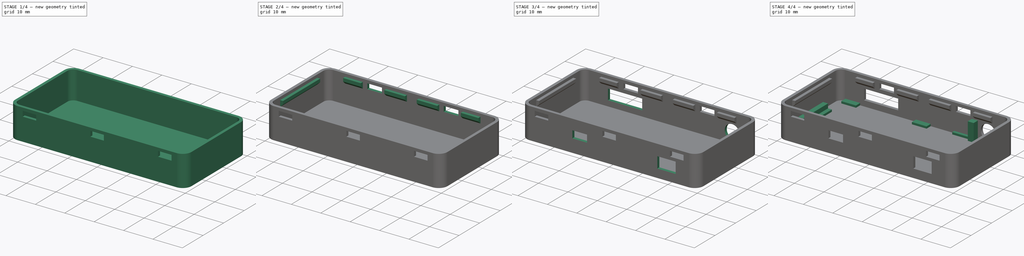
[diagram: build sequence overview — one tinted view per stage of 4, left to right]
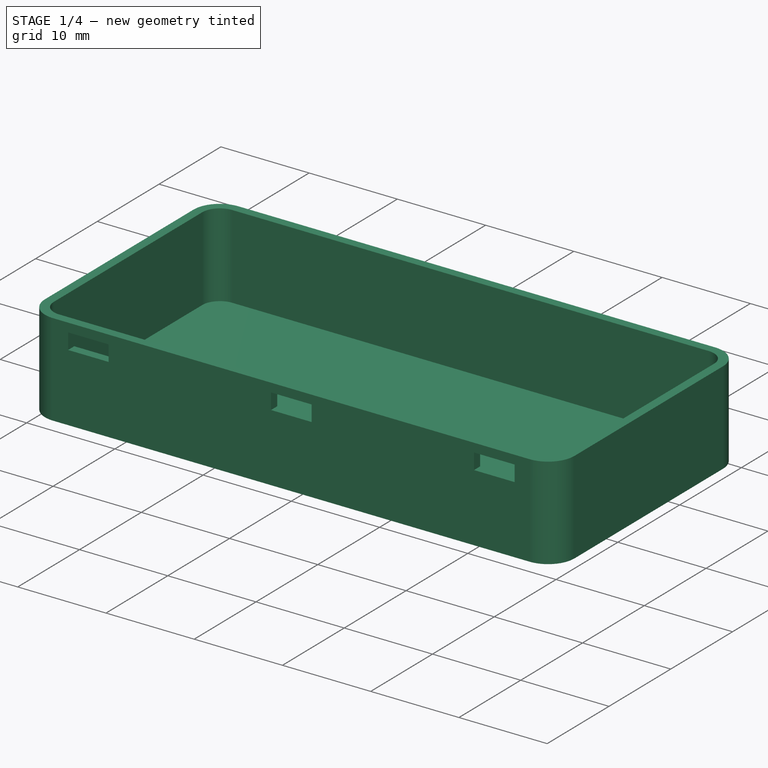
[diagram: stage 1 of 4 — iso view after this stage's code; geometry added in this stage tinted green]
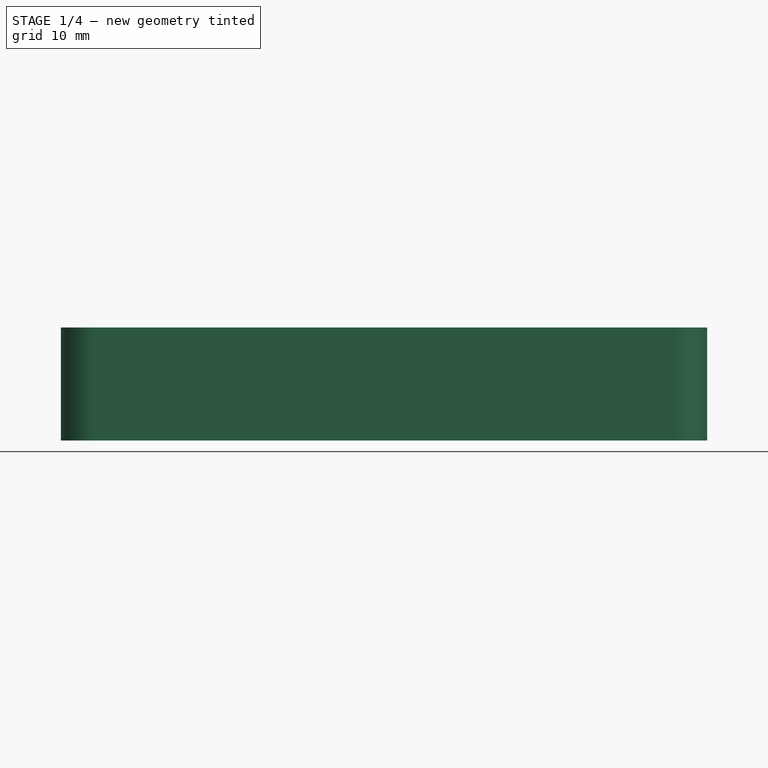
[diagram: stage 1 of 4 — front view after this stage's code; geometry added in this stage tinted green]
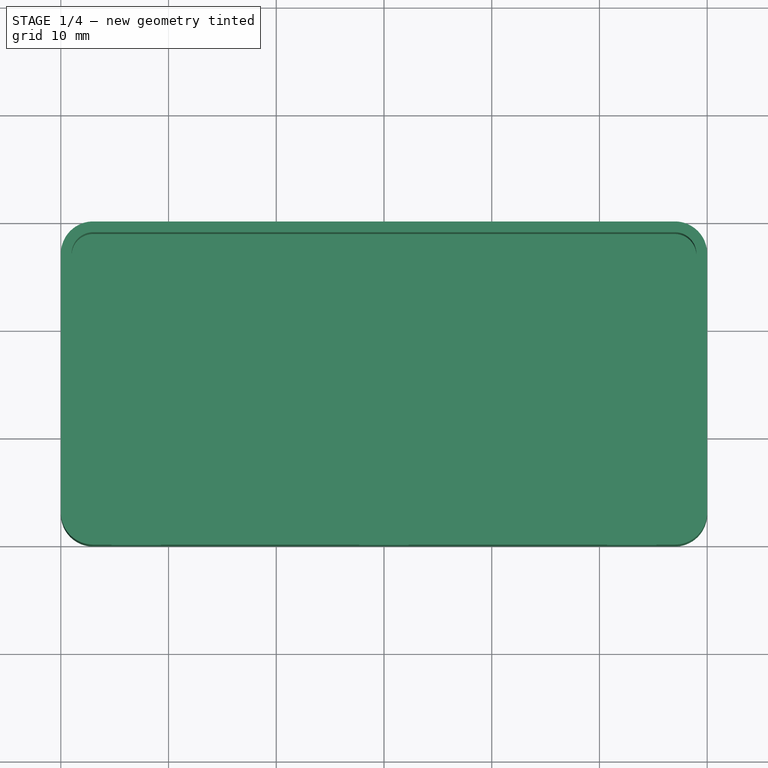
[diagram: stage 1 of 4 — top view after this stage's code; geometry added in this stage tinted green]
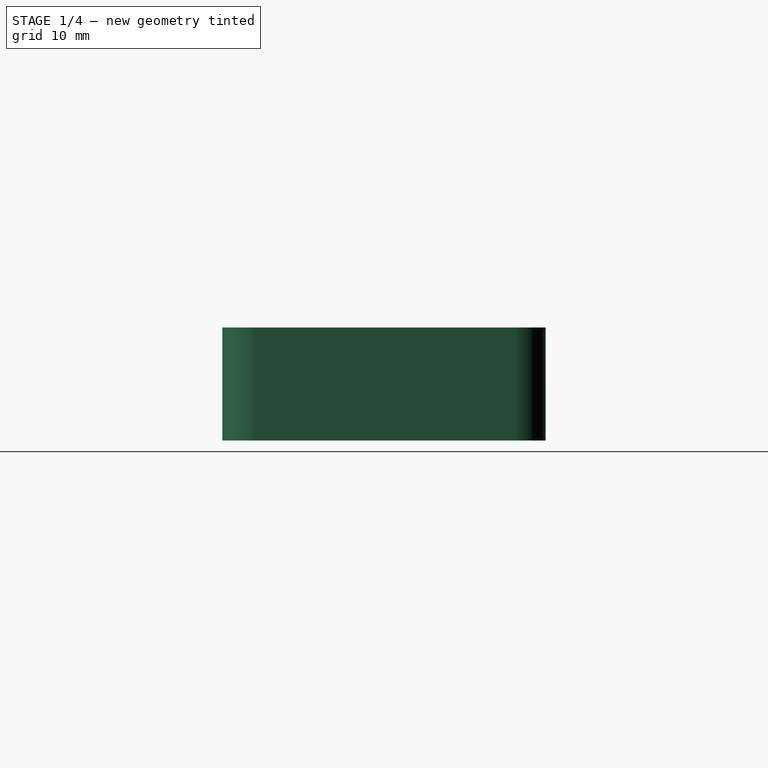
[diagram: stage 1 of 4 — right view after this stage's code; geometry added in this stage tinted green]
FCSTD DOCUMENT  (FreeCAD 0.20R29177 +426 (Git))
Label: box_bottom_proto11
License: All rights reserved
LicenseURL: http://en.wikipedia.org/wiki/All_rights_reserved
objects: Sketcher::SketchObject×10, PartDesign::Pad×5, PartDesign::Pocket×5, PartDesign::Chamfer×1, PartDesign::Body×1
note: 33 computed .brp shape members not serialized (recipe doc carries the construction recipe); baked Part::Feature solids carry a one-line shape summary decoded from their .brp

FEATURE [Sketcher::SketchObject] Sketch
  FullyConstrained = true
  MapMode = 5
  Support = -> [XY_Plane]
  sketch-geometry (20):
    g0: GeomPoint X=0 Y=3 Z=0
    g1: GeomPoint X=3 Y=3 Z=0
    g2: GeomPoint X=3 Y=9e-16 Z=0
    g3: GeomPoint X=1.803e-13 Y=27 Z=0
    g4: GeomPoint X=3 Y=27 Z=0
    g5: GeomPoint X=3 Y=30 Z=0
    g6: ArcOfCircle CenterX=3 CenterY=3 CenterZ=0 NormalX=0 NormalY=0 NormalZ=1 AngleXU=0 Radius=3 StartAngle=3.14159 EndAngle=4.71239
    g7: ArcOfCircle CenterX=3 CenterY=27 CenterZ=0 NormalX=0 NormalY=0 NormalZ=1 AngleXU=0 Radius=3 StartAngle=1.5708 EndAngle=3.14159
    g8: GeomPoint X=57 Y=27 Z=0
    g9: GeomPoint X=57 Y=3 Z=0
    g10: GeomPoint X=57 Y=30 Z=0
    g11: GeomPoint X=60 Y=27 Z=0
    g12: GeomPoint X=60 Y=3 Z=0
    g13: GeomPoint X=57 Y=1.599e-13 Z=0
    g14: ArcOfCircle CenterX=57 CenterY=27 CenterZ=0 NormalX=0 NormalY=0 NormalZ=1 AngleXU=0 Radius=3 StartAngle=0 EndAngle=1.5708
    g15: ArcOfCircle CenterX=57 CenterY=3 CenterZ=0 NormalX=0 NormalY=0 NormalZ=1 AngleXU=0 Radius=3 StartAngle=4.71239 EndAngle=6.28319
    g16: LineSegment StartX=57 StartY=30 StartZ=0 EndX=3 EndY=30 EndZ=0
    g17: LineSegment StartX=1.803e-13 StartY=27 StartZ=0 EndX=0 EndY=3 EndZ=0
    g18: LineSegment StartX=3 StartY=9e-16 StartZ=0 EndX=57 EndY=1.599e-13 EndZ=0
    g19: LineSegment StartX=60 StartY=3 StartZ=0 EndX=60 EndY=27 EndZ=0
  constraints (40):
    c: PointOnObject(g0,g-2)
    c: PointOnObject(g2,g-1)
    c: PointOnObject(g3,g-2)
    c: DistanceY(g-1,g1) = 3
    c: DistanceY(g-1,g0) = 3
    c: DistanceX(g-1,g2) = 3
    c: Coincident(g6,g1)
    c: Coincident(g6,g0)
    c: Coincident(g6,g2)
    c: DistanceY(g-1,g4) = 27
    c: DistanceY(g-1,g3) = 27
    c: DistanceY(g-1,g5) = 30
    c: DistanceX(g-1,g5) = 3
    c: Coincident(g7,g4)
    c: Coincident(g7,g5)
    c: Coincident(g7,g3)
    c: PointOnObject(g13,g-1)
    c: DistanceX(g-1,g13) = 57
    c: DistanceX(g-1,g9) = 57
    c: DistanceY(g-1,g9) = 3
    c: DistanceY(g-1,g12) = 3
    c: DistanceX(g-1,g11) = 60
    c: DistanceY(g-1,g11) = 27
    c: DistanceY(g-1,g8) = 27
    c: DistanceX(g-1,g8) = 57
    c: DistanceX(g-1,g10) = 57
    c: Coincident(g14,g8)
    c: Coincident(g14,g11)
    c: Coincident(g14,g10)
    c: Coincident(g15,g9)
    c: Coincident(g15,g13)
    c: Coincident(g15,g12)
    c: Coincident(g16,g14)
    c: Coincident(g16,g7)
    c: Coincident(g17,g7)
    c: Coincident(g17,g6)
    c: Coincident(g18,g6)
    c: Coincident(g18,g15)
    c: Coincident(g19,g15)
    c: Coincident(g19,g14)
FEATURE [PartDesign::Pad] Pad
  Direction = (0,0,1)
  Length = 10.5
  Length2 = 10
  Profile = -> Sketch
  ReferenceAxis = -> Sketch [N_Axis]
  Type = 0
FEATURE [Sketcher::SketchObject] Sketch001
  FullyConstrained = true
  MapMode = 5
  Placement = pos=(0,0,10.5) rot=(0,0,1;0rad)
  Support = -> [Pad]
  sketch-geometry (20):
    g0: GeomPoint X=3 Y=3 Z=0
    g1: GeomPoint X=3 Y=27 Z=0
    g2: GeomPoint X=57 Y=27 Z=0
    g3: GeomPoint X=57 Y=3 Z=0
    g4: GeomPoint X=1 Y=27 Z=0
    g5: GeomPoint X=3 Y=29 Z=0
    g6: GeomPoint X=59 Y=27 Z=0
    g7: GeomPoint X=57 Y=29 Z=0
    g8: GeomPoint X=59 Y=3 Z=0
    g9: GeomPoint X=57 Y=1 Z=0
    g10: GeomPoint X=3 Y=1 Z=0
    g11: GeomPoint X=1 Y=3 Z=0
    g12: ArcOfCircle CenterX=3 CenterY=27 CenterZ=0 NormalX=0 NormalY=0 NormalZ=1 AngleXU=0 Radius=2 StartAngle=1.5708 EndAngle=3.14159
    g13: ArcOfCircle CenterX=3 CenterY=3 CenterZ=0 NormalX=0 NormalY=0 NormalZ=1 AngleXU=0 Radius=2 StartAngle=3.14159 EndAngle=4.71239
    g14: ArcOfCircle CenterX=57 CenterY=27 CenterZ=0 NormalX=0 NormalY=0 NormalZ=1 AngleXU=0 Radius=2 StartAngle=0 EndAngle=1.5708
    g15: ArcOfCircle CenterX=57 CenterY=3 CenterZ=0 NormalX=0 NormalY=0 NormalZ=1 AngleXU=0 Radius=2 StartAngle=4.71239 EndAngle=6.28319
    g16: LineSegment StartX=3 StartY=29 StartZ=0 EndX=57 EndY=29 EndZ=0
    g17: LineSegment StartX=59 StartY=27 StartZ=0 EndX=59 EndY=3 EndZ=0
    g18: LineSegment StartX=57 StartY=1 StartZ=0 EndX=3 EndY=1 EndZ=0
    g19: LineSegment StartX=1 StartY=3 StartZ=0 EndX=1 EndY=27 EndZ=0
  constraints (41):
    c: DistanceY(g-1,g0) = 3
    c: DistanceX(g-1,g0) = 3
    c: DistanceY(g-1,g1) = 27
    c: DistanceX(g-1,g1) = 3
    c: DistanceY(g-1,g3) = 3
    c: DistanceX(g-1,g3) = 57
    c: DistanceX(g-1,g2) = 57
    c: DistanceY(g-1,g2) = 27
    c: DistanceX(g-1,g10) = 3
    c: DistanceY(g-1,g10) = 1
    c: DistanceY(g-1,g11) = 3
    c: DistanceX(g-1,g5) = 3
    c: DistanceY(g-1,g5) = 29
    c: DistanceY(g-1,g9) = 1
    c: DistanceX(g-1,g9) = 57
    c: DistanceY(g-1,g8) = 3
    c: DistanceX(g-1,g6) = 59
    c: DistanceY(g-1,g6) = 27
    c: DistanceY(g-1,g7) = 29
    c: DistanceX(g-1,g7) = 57
    c: Coincident(g12,g1)
    c: Coincident(g12,g5)
    c: Coincident(g12,g4)
    c: Coincident(g13,g0)
    c: Coincident(g13,g11)
    c: Coincident(g13,g10)
    c: Coincident(g14,g2)
    c: Coincident(g14,g6)
    c: Coincident(g15,g3)
    c: Coincident(g15,g9)
    c: Coincident(g15,g8)
    c: Coincident(g16,g12)
    c: Coincident(g16,g14)
    c: Horizontal(g16)
    c: Coincident(g17,g14)
    c: Coincident(g17,g15)
    c: Coincident(g18,g15)
    c: Coincident(g18,g13)
    c: Coincident(g19,g13)
    c: Coincident(g19,g12)
    c: DistanceY(g-1,g12) = 27
FEATURE [PartDesign::Pocket] Pocket
  BaseFeature = -> Pad
  Direction = (0,0,-1)
  Length = 9.5
  Length2 = 5
  Profile = -> Sketch001
  ReferenceAxis = -> Sketch001 [N_Axis]
  Type = 0
FEATURE [Sketcher::SketchObject] Sketch002
  FullyConstrained = true
  MapMode = 5
  Placement = pos=(0,0,0) rot=(1,0,0;1.5708rad)
  Support = -> [XZ_Plane]
  sketch-geometry (12):
    g0: LineSegment StartX=4.7 StartY=9.5 StartZ=0 EndX=9.3 EndY=9.5 EndZ=0
    g1: LineSegment StartX=9.3 StartY=9.5 StartZ=0 EndX=9.3 EndY=7.7 EndZ=0
    g2: LineSegment StartX=9.3 StartY=7.7 StartZ=0 EndX=4.7 EndY=7.7 EndZ=0
    g3: LineSegment StartX=4.7 StartY=7.7 StartZ=0 EndX=4.7 EndY=9.5 EndZ=0
    g4: LineSegment StartX=27.7 StartY=9.5 StartZ=0 EndX=32.3 EndY=9.5 EndZ=0
    g5: LineSegment StartX=32.3 StartY=9.5 StartZ=0 EndX=32.3 EndY=7.7 EndZ=0
    g6: LineSegment StartX=32.3 StartY=7.7 StartZ=0 EndX=27.7 EndY=7.7 EndZ=0
    g7: LineSegment StartX=27.7 StartY=7.7 StartZ=0 EndX=27.7 EndY=9.5 EndZ=0
    g8: LineSegment StartX=50.7 StartY=9.5 StartZ=0 EndX=55.3 EndY=9.5 EndZ=0
    g9: LineSegment StartX=55.3 StartY=9.5 StartZ=0 EndX=55.3 EndY=7.7 EndZ=0
    g10: LineSegment StartX=55.3 StartY=7.7 StartZ=0 EndX=50.7 EndY=7.7 EndZ=0
    g11: LineSegment StartX=50.7 StartY=7.7 StartZ=0 EndX=50.7 EndY=9.5 EndZ=0
  constraints (36):
    c: Coincident(g0,g1)
    c: Coincident(g1,g2)
    c: Coincident(g2,g3)
    c: Coincident(g3,g0)
    c: Horizontal(g0)
    c: Horizontal(g2)
    c: Vertical(g1)
    c: Vertical(g3)
    c: Coincident(g4,g5)
    c: Coincident(g5,g6)
    c: Coincident(g6,g7)
    c: Coincident(g7,g4)
    c: Horizontal(g4)
    c: Horizontal(g6)
    c: Vertical(g5)
    c: Vertical(g7)
    c: Coincident(g8,g9)
    c: Coincident(g9,g10)
    c: Coincident(g10,g11)
    c: Coincident(g11,g8)
    c: Horizontal(g8)
    c: Horizontal(g10)
    c: Vertical(g9)
    c: Vertical(g11)
    c: DistanceX(g-1,g6) = 27.7
    c: DistanceX(g-1,g4) = 32.3
    c: DistanceY(g-1,g6) = 7.7
    c: DistanceY(g-1,g4) = 9.5
    c: DistanceX(g-1,g2) = 4.7
    c: DistanceX(g-1,g1) = 9.3
    c: DistanceY(g-1,g1) = 7.7
    c: DistanceY(g-1,g0) = 9.5
    c: DistanceX(g-1,g9) = 55.3
    c: DistanceX(g-1,g10) = 50.7
    c: DistanceY(g-1,g10) = 7.7
    c: DistanceY(g-1,g8) = 9.5
FEATURE [PartDesign::Pocket] Pocket001
  BaseFeature = -> Pocket
  Direction = (0,1,2e-16)
  Length = 5
  Length2 = 5
  Profile = -> Sketch002
  ReferenceAxis = -> Sketch002 [N_Axis]
  Type = 2
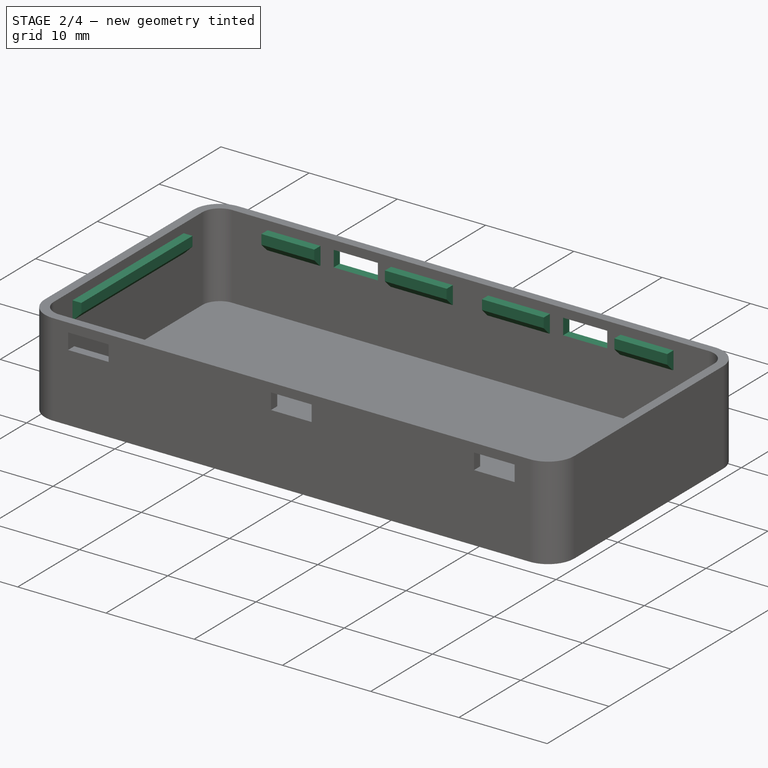
[diagram: stage 2 of 4 — iso view after this stage's code; geometry added in this stage tinted green]
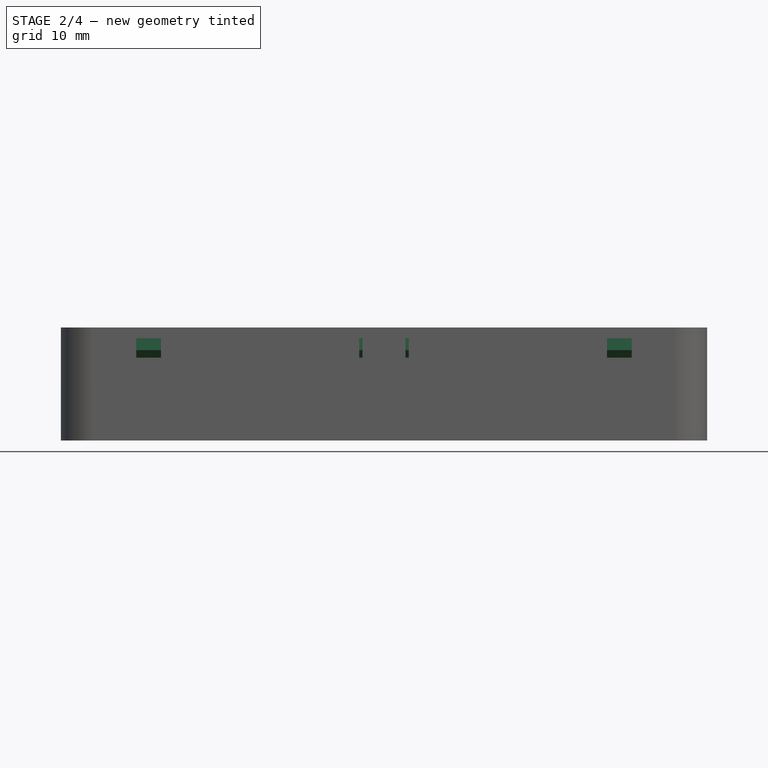
[diagram: stage 2 of 4 — front view after this stage's code; geometry added in this stage tinted green]
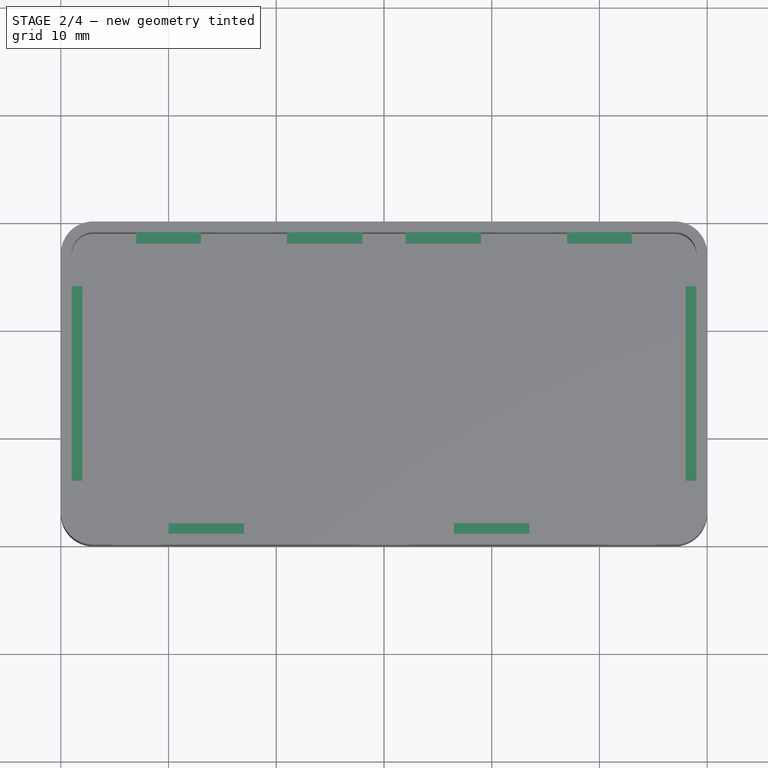
[diagram: stage 2 of 4 — top view after this stage's code; geometry added in this stage tinted green]
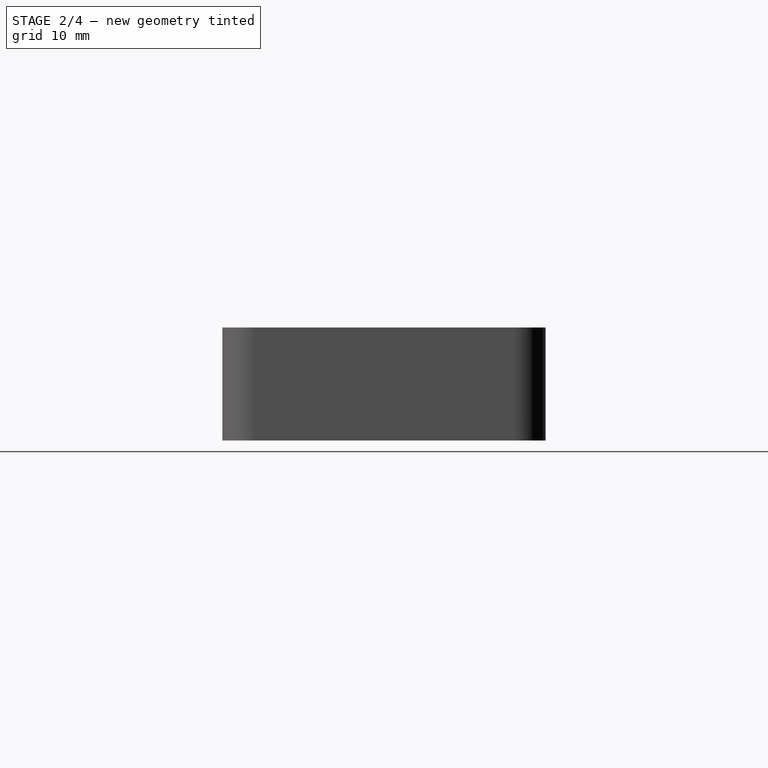
[diagram: stage 2 of 4 — right view after this stage's code; geometry added in this stage tinted green]
FEATURE [Sketcher::SketchObject] Sketch003
  FullyConstrained = true
  MapMode = 5
  Placement = pos=(0,29,0) rot=(1,0,0;1.5708rad)
  Support = -> [Pocket001]
  sketch-geometry (8):
    g0: LineSegment StartX=14.5 StartY=9.5 StartZ=0 EndX=19.5 EndY=9.5 EndZ=0
    g1: LineSegment StartX=19.5 StartY=9.5 StartZ=0 EndX=19.5 EndY=7.7 EndZ=0
    g2: LineSegment StartX=19.5 StartY=7.7 StartZ=0 EndX=14.5 EndY=7.7 EndZ=0
    g3: LineSegment StartX=14.5 StartY=7.7 StartZ=0 EndX=14.5 EndY=9.5 EndZ=0
    g4: LineSegment StartX=40.5 StartY=9.5 StartZ=0 EndX=45.5 EndY=9.5 EndZ=0
    g5: LineSegment StartX=45.5 StartY=9.5 StartZ=0 EndX=45.5 EndY=7.7 EndZ=0
    g6: LineSegment StartX=45.5 StartY=7.7 StartZ=0 EndX=40.5 EndY=7.7 EndZ=0
    g7: LineSegment StartX=40.5 StartY=7.7 StartZ=0 EndX=40.5 EndY=9.5 EndZ=0
  constraints (24):
    c: Coincident(g0,g1)
    c: Coincident(g1,g2)
    c: Coincident(g2,g3)
    c: Coincident(g3,g0)
    c: Horizontal(g0)
    c: Horizontal(g2)
    c: Vertical(g1)
    c: Vertical(g3)
    c: Coincident(g4,g5)
    c: Coincident(g5,g6)
    c: Coincident(g6,g7)
    c: Coincident(g7,g4)
    c: Horizontal(g4)
    c: Horizontal(g6)
    c: Vertical(g5)
    c: Vertical(g7)
    c: DistanceX(g-1,g1) = 19.5
    c: DistanceX(g-1,g2) = 14.5
    c: DistanceX(g-1,g5) = 45.5
    c: DistanceX(g-1,g6) = 40.5
    c: DistanceY(g-1,g2) = 7.7
    c: DistanceY(g-1,g0) = 9.5
    c: DistanceY(g-1,g6) = 7.7
    c: DistanceY(g-1,g4) = 9.5
FEATURE [PartDesign::Pocket] Pocket002
  BaseFeature = -> Pocket001
  Direction = (0,1,-2e-16)
  Length = 5
  Length2 = 5
  Profile = -> Sketch003
  ReferenceAxis = -> Sketch003 [N_Axis]
  Type = 2
FEATURE [Sketcher::SketchObject] Sketch004
  AttachmentOffset = pos=(0,0,9.5) rot=(0,0,1;0rad)
  FullyConstrained = true
  MapMode = 5
  Placement = pos=(0,0,9.5) rot=(0,0,1;0rad)
  Support = -> [XY_Plane]
  sketch-geometry (32):
    g0: LineSegment StartX=1 StartY=24 StartZ=0 EndX=2 EndY=24 EndZ=0
    g1: LineSegment StartX=2 StartY=24 StartZ=0 EndX=2 EndY=6 EndZ=0
    g2: LineSegment StartX=2 StartY=6 StartZ=0 EndX=1 EndY=6 EndZ=0
    g3: LineSegment StartX=1 StartY=6 StartZ=0 EndX=1 EndY=24 EndZ=0
    g4: LineSegment StartX=10 StartY=2 StartZ=0 EndX=17 EndY=2 EndZ=0
    g5: LineSegment StartX=17 StartY=2 StartZ=0 EndX=17 EndY=1 EndZ=0
    g6: LineSegment StartX=17 StartY=1 StartZ=0 EndX=10 EndY=1 EndZ=0
    g7: LineSegment StartX=10 StartY=1 StartZ=0 EndX=10 EndY=2 EndZ=0
    g8: LineSegment StartX=36.5 StartY=2 StartZ=0 EndX=43.5 EndY=2 EndZ=0
    g9: LineSegment StartX=43.5 StartY=2 StartZ=0 EndX=43.5 EndY=1 EndZ=0
    g10: LineSegment StartX=43.5 StartY=1 StartZ=0 EndX=36.5 EndY=1 EndZ=0
    g11: LineSegment StartX=36.5 StartY=1 StartZ=0 EndX=36.5 EndY=2 EndZ=0
    g12: LineSegment StartX=21 StartY=29 StartZ=0 EndX=28 EndY=29 EndZ=0
    g13: LineSegment StartX=28 StartY=29 StartZ=0 EndX=28 EndY=28 EndZ=0
    g14: LineSegment StartX=28 StartY=28 StartZ=0 EndX=21 EndY=28 EndZ=0
    g15: LineSegment StartX=21 StartY=28 StartZ=0 EndX=21 EndY=29 EndZ=0
    g16: LineSegment StartX=47 StartY=29 StartZ=0 EndX=53 EndY=29 EndZ=0
    g17: LineSegment StartX=53 StartY=29 StartZ=0 EndX=53 EndY=28 EndZ=0
    g18: LineSegment StartX=53 StartY=28 StartZ=0 EndX=47 EndY=28 EndZ=0
    g19: LineSegment StartX=47 StartY=28 StartZ=0 EndX=47 EndY=29 EndZ=0
    g20: LineSegment StartX=58 StartY=24 StartZ=0 EndX=59 EndY=24 EndZ=0
    g21: LineSegment StartX=59 StartY=24 StartZ=0 EndX=59 EndY=6 EndZ=0
    g22: LineSegment StartX=59 StartY=6 StartZ=0 EndX=58 EndY=6 EndZ=0
    g23: LineSegment StartX=58 StartY=6 StartZ=0 EndX=58 EndY=24 EndZ=0
    g24: LineSegment StartX=7 StartY=29 StartZ=0 EndX=13 EndY=29 EndZ=0
    g25: LineSegment StartX=13 StartY=29 StartZ=0 EndX=13 EndY=28 EndZ=0
    g26: LineSegment StartX=13 StartY=28 StartZ=0 EndX=7 EndY=28 EndZ=0
    g27: LineSegment StartX=7 StartY=28 StartZ=0 EndX=7 EndY=29 EndZ=0
    g28: LineSegment StartX=32 StartY=29 StartZ=0 EndX=39 EndY=29 EndZ=0
    g29: LineSegment StartX=39 StartY=29 StartZ=0 EndX=39 EndY=28 EndZ=0
    g30: LineSegment StartX=39 StartY=28 StartZ=0 EndX=32 EndY=28 EndZ=0
    g31: LineSegment StartX=32 StartY=28 StartZ=0 EndX=32 EndY=29 EndZ=0
  constraints (96):
    c: Coincident(g0,g1)
    c: Coincident(g1,g2)
    c: Coincident(g2,g3)
    c: Coincident(g3,g0)
    c: Horizontal(g0)
    c: Horizontal(g2)
    c: Vertical(g1)
    c: Vertical(g3)
    c: Coincident(g4,g5)
    c: Coincident(g5,g6)
    c: Coincident(g6,g7)
    c: Coincident(g7,g4)
    c: Horizontal(g4)
    c: Horizontal(g6)
    c: Vertical(g5)
    c: Vertical(g7)
    c: Coincident(g8,g9)
    c: Coincident(g9,g10)
    c: Coincident(g10,g11)
    c: Coincident(g11,g8)
    c: Horizontal(g8)
    c: Horizontal(g10)
    c: Vertical(g9)
    c: Vertical(g11)
    c: Coincident(g12,g13)
    c: Coincident(g13,g14)
    c: Coincident(g14,g15)
    c: Coincident(g15,g12)
    c: Horizontal(g12)
    c: Horizontal(g14)
    c: Vertical(g13)
    c: Vertical(g15)
    c: Coincident(g16,g17)
    c: Coincident(g17,g18)
    c: Coincident(g18,g19)
    c: Coincident(g19,g16)
    c: Horizontal(g16)
    c: Horizontal(g18)
    c: Vertical(g17)
    c: Vertical(g19)
    c: Coincident(g20,g21)
    c: Coincident(g21,g22)
    c: Coincident(g22,g23)
    c: Coincident(g23,g20)
    c: Horizontal(g20)
    c: Horizontal(g22)
    c: Vertical(g21)
    c: Vertical(g23)
    c: DistanceY(g-1,g0) = 24
    c: DistanceY(g-1,g2) = 6
    c: DistanceX(g-1,g0) = 1
    c: DistanceX(g-1,g0) = 2
    c: DistanceY(g-1,g20) = 24
    c: DistanceY(g-1,g22) = 6
    c: DistanceX(g-1,g20) = 59
    c: DistanceX(g-1,g22) = 58
    c: DistanceY(g-1,g6) = 1
    c: DistanceY(g-1,g4) = 2
    c: DistanceY(g-1,g10) = 1
    c: DistanceY(g-1,g8) = 2
    c: DistanceY(g-1,g14) = 28
    c: DistanceY(g-1,g12) = 29
    c: DistanceY(g-1,g16) = 29
    c: DistanceY(g-1,g18) = 28
    c: Coincident(g24,g25)
    c: Coincident(g25,g26)
    c: Coincident(g26,g27)
    c: Coincident(g27,g24)
    c: Horizontal(g24)
    c: Horizontal(g26)
    c: Vertical(g25)
    c: Vertical(g27)
    c: DistanceY(g-1,g26) = 28
    c: DistanceY(g-1,g24) = 29
    c: DistanceX(g-1,g26) = 7
    c: DistanceX(g-1,g25) = 13
    c: DistanceX(g-1,g14) = 21
    c: DistanceX(g-1,g13) = 28
    c: DistanceX(g-1,g18) = 47
    c: DistanceX(g-1,g17) = 53
    c: DistanceX(g-1,g6) = 10
    c: DistanceX(g-1,g5) = 17
    c: DistanceX(g-1,g10) = 36.5
    c: DistanceX(g-1,g9) = 43.5
    c: Coincident(g28,g29)
    c: Coincident(g29,g30)
    c: Coincident(g30,g31)
    c: Coincident(g31,g28)
    c: Horizontal(g28)
    c: Horizontal(g30)
    c: Vertical(g29)
    c: Vertical(g31)
    c: DistanceY(g-1,g28) = 29
    c: DistanceY(g-1,g30) = 28
    c: DistanceX(g-1,g30) = 32
    c: DistanceX(g-1,g29) = 39
FEATURE [PartDesign::Pad] Pad001
  BaseFeature = -> Pocket002
  Direction = (0,0,1)
  Length = 2
  Length2 = 10
  Profile = -> Sketch004
  ReferenceAxis = -> Sketch004 [N_Axis]
  Reversed = true
  Type = 0
FEATURE [PartDesign::Chamfer] Chamfer
  Angle = 45
  Base = -> Pad001 [Edge184,Edge192,Edge201,Edge179,Edge145,Edge153,Edge161,Edge169]
  BaseFeature = -> Pad001
  ChamferType = 0
  FlipDirection = false
  Size = 0.9
  Size2 = 1
  SupportTransform = false
  UseAllEdges = false
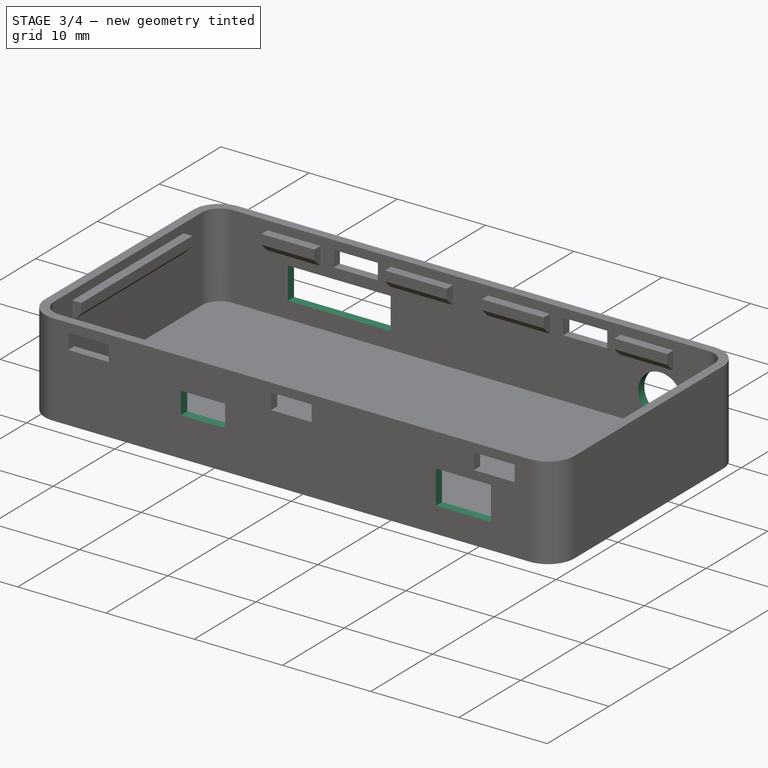
[diagram: stage 3 of 4 — iso view after this stage's code; geometry added in this stage tinted green]
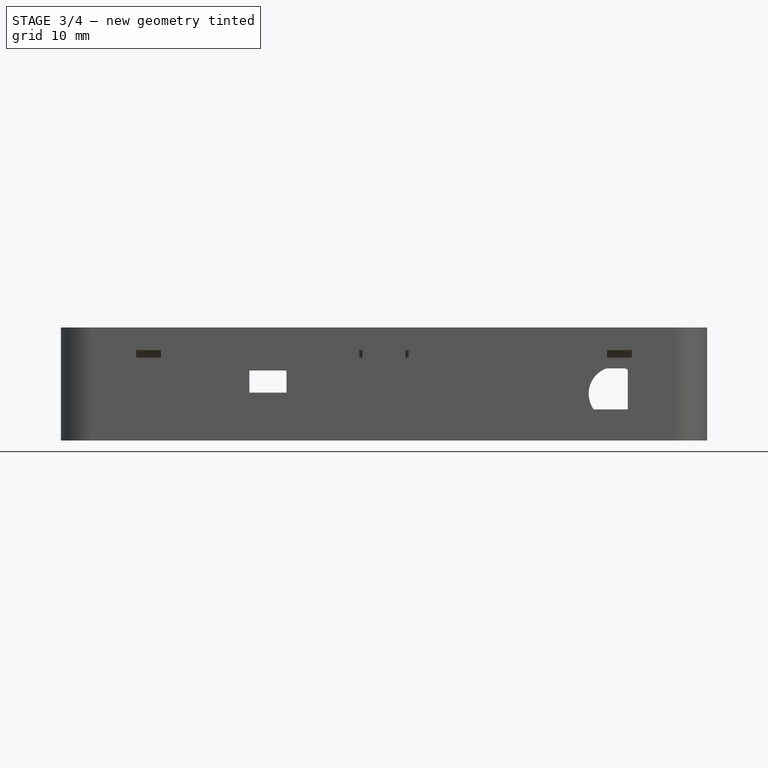
[diagram: stage 3 of 4 — front view after this stage's code; geometry added in this stage tinted green]
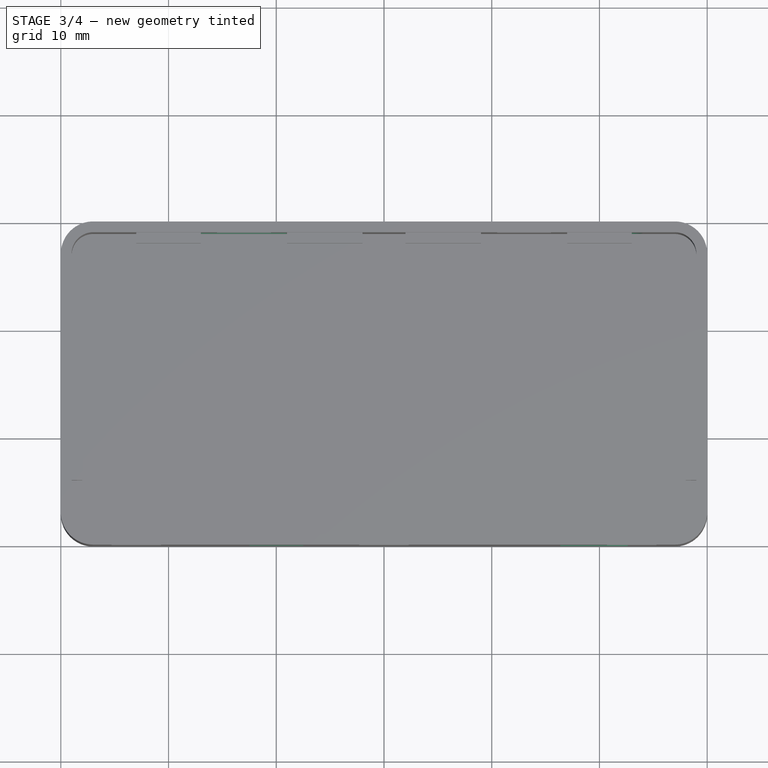
[diagram: stage 3 of 4 — top view after this stage's code; geometry added in this stage tinted green]
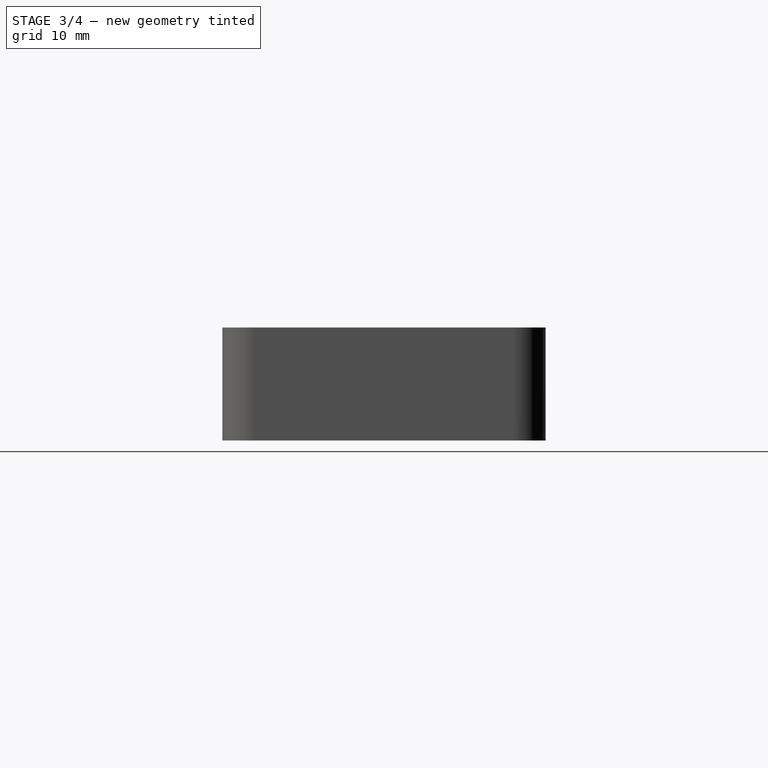
[diagram: stage 3 of 4 — right view after this stage's code; geometry added in this stage tinted green]
FEATURE [Sketcher::SketchObject] Sketch005
  AttachmentOffset = pos=(0,0,-28) rot=(0,1,0;0rad)
  FullyConstrained = true
  MapMode = 5
  Placement = pos=(0,28,6.2e-15) rot=(1,0,0;1.5708rad)
  Support = -> [XZ_Plane]
  sketch-geometry (5):
    g0: LineSegment StartX=20.95 StartY=6.5 StartZ=0 EndX=20.95 EndY=2.9 EndZ=0
    g1: LineSegment StartX=20.95 StartY=2.9 StartZ=0 EndX=9.3 EndY=2.9 EndZ=0
    g2: Circle CenterX=51.5 CenterY=4.35 CenterZ=0 NormalX=0 NormalY=0 NormalZ=1 AngleXU=0 Radius=2.5
    g3: LineSegment StartX=20.95 StartY=6.5 StartZ=0 EndX=9.3 EndY=6.5 EndZ=0
    g4: LineSegment StartX=9.3 StartY=2.9 StartZ=0 EndX=9.3 EndY=6.5 EndZ=0
  constraints (15):
    c: Coincident(g0,g1)
    c: Horizontal(g1)
    c: Vertical(g0)
    c: DistanceY(g-1,g1) = 2.9
    c: Diameter(g2) = 5
    c: DistanceY(g-1,g2) = 4.35
    c: DistanceX(g-1,g2) = 51.5
    c: DistanceX(g-1,g0) = 20.95
    c: DistanceX(g-1,g1) = 9.3
    c: DistanceY(g-1,g0) = 6.5
    c: Coincident(g3,g0)
    c: Horizontal(g3)
    c: Coincident(g4,g1)
    c: Vertical(g4)
    c: Coincident(g3,g4)
FEATURE [PartDesign::Pocket] Pocket003
  BaseFeature = -> Chamfer
  Direction = (0,1,2e-16)
  Length = 5
  Length2 = 5
  Profile = -> Sketch005
  ReferenceAxis = -> Sketch005 [N_Axis]
  Type = 1
FEATURE [Sketcher::SketchObject] Sketch006
  FullyConstrained = true
  MapMode = 5
  Placement = pos=(0,0,0) rot=(1,0,0;1.5708rad)
  Support = -> [XZ_Plane]
  sketch-geometry (8):
    g0: LineSegment StartX=46.375 StartY=6.7 StartZ=0 EndX=52.625 EndY=6.7 EndZ=0
    g1: LineSegment StartX=52.625 StartY=6.7 StartZ=0 EndX=52.625 EndY=2.9 EndZ=0
    g2: LineSegment StartX=52.625 StartY=2.9 StartZ=0 EndX=46.375 EndY=2.9 EndZ=0
    g3: LineSegment StartX=46.375 StartY=2.9 StartZ=0 EndX=46.375 EndY=6.7 EndZ=0
    g4: LineSegment StartX=17.5 StartY=6.95 StartZ=0 EndX=22.5 EndY=6.95 EndZ=0
    g5: LineSegment StartX=22.5 StartY=6.95 StartZ=0 EndX=22.5 EndY=4.45 EndZ=0
    g6: LineSegment StartX=22.5 StartY=4.45 StartZ=0 EndX=17.5 EndY=4.45 EndZ=0
    g7: LineSegment StartX=17.5 StartY=4.45 StartZ=0 EndX=17.5 EndY=6.95 EndZ=0
  constraints (24):
    c: Coincident(g0,g1)
    c: Coincident(g1,g2)
    c: Coincident(g2,g3)
    c: Coincident(g3,g0)
    c: Horizontal(g0)
    c: Horizontal(g2)
    c: Vertical(g1)
    c: Vertical(g3)
    c: DistanceY(g-1,g1) = 2.9
    c: DistanceY(g-1,g0) = 6.7
    c: DistanceX(g-1,g2) = 46.375
    c: DistanceX(g-1,g1) = 52.625
    c: Coincident(g4,g5)
    c: Coincident(g5,g6)
    c: Coincident(g6,g7)
    c: Coincident(g7,g4)
    c: Horizontal(g4)
    c: Horizontal(g6)
    c: Vertical(g5)
    c: Vertical(g7)
    c: DistanceY(g-1,g6) = 4.45
    c: DistanceY(g-1,g4) = 6.95
    c: DistanceX(g-1,g4) = 17.5
    c: DistanceX(g-1,g4) = 22.5
FEATURE [PartDesign::Pocket] Pocket004
  BaseFeature = -> Pocket003
  Direction = (0,1,2e-16)
  Length = 5
  Length2 = 5
  Profile = -> Sketch006
  ReferenceAxis = -> Sketch006 [N_Axis]
  Type = 2
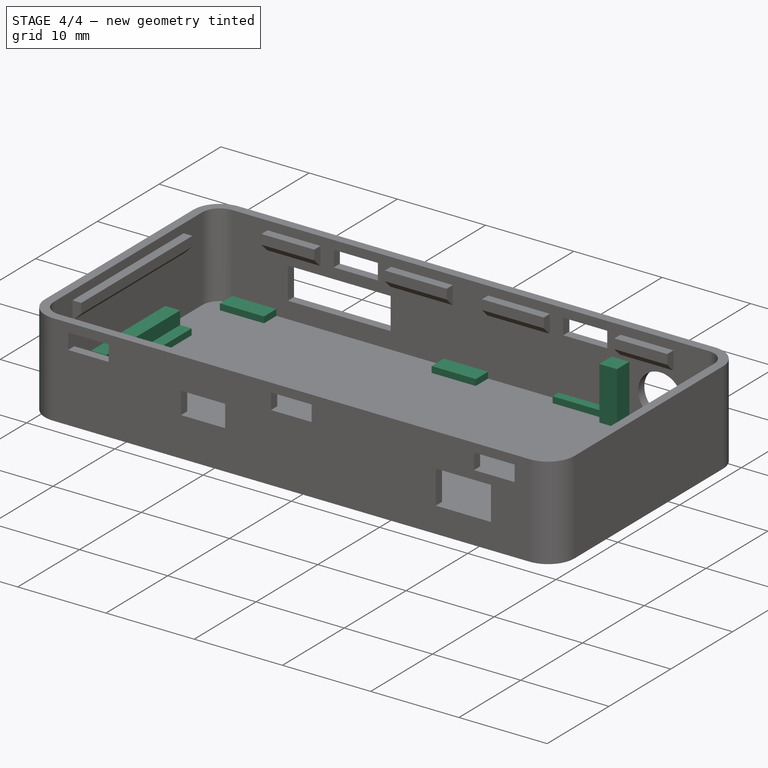
[diagram: stage 4 of 4 — iso view after this stage's code; geometry added in this stage tinted green]
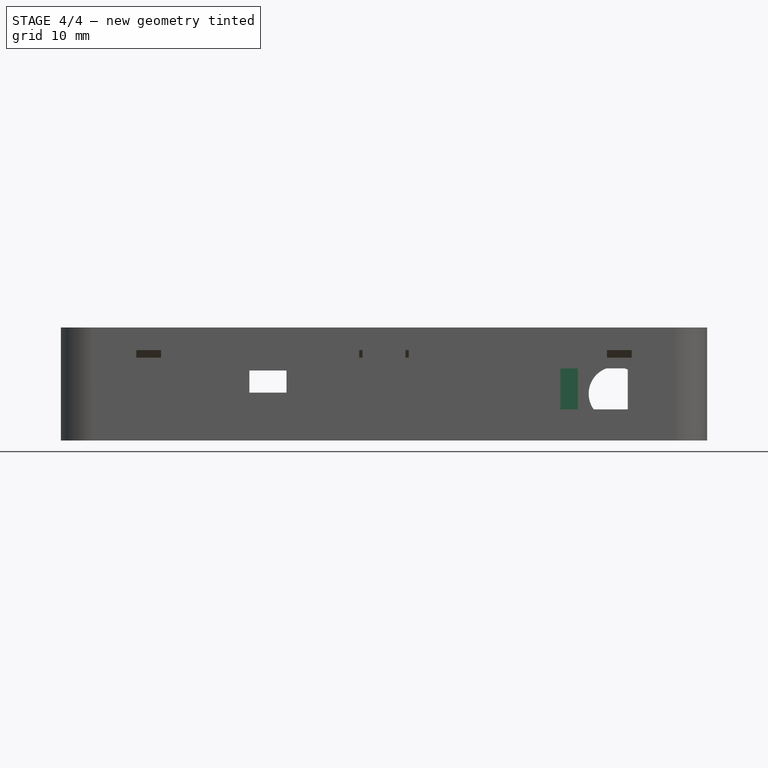
[diagram: stage 4 of 4 — front view after this stage's code; geometry added in this stage tinted green]
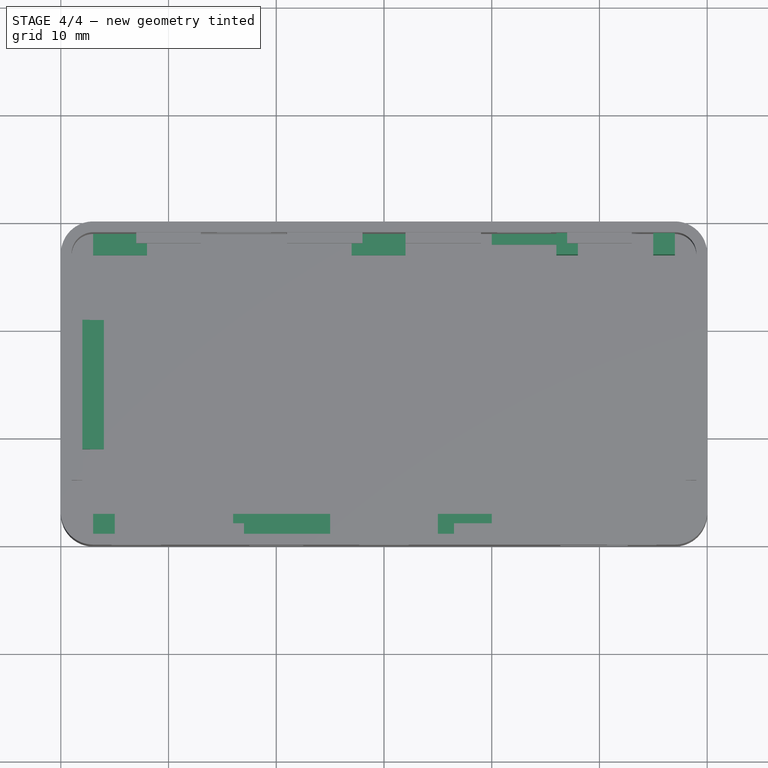
[diagram: stage 4 of 4 — top view after this stage's code; geometry added in this stage tinted green]
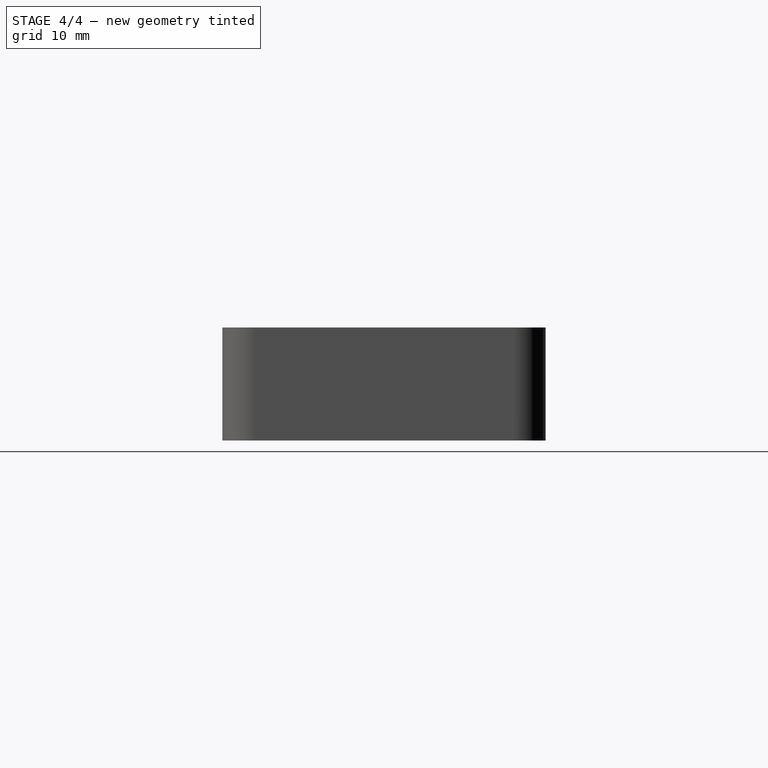
[diagram: stage 4 of 4 — right view after this stage's code; geometry added in this stage tinted green]
FEATURE [Sketcher::SketchObject] Sketch007
  FullyConstrained = true
  MapMode = 5
  Placement = pos=(0,0,1) rot=(0,0,1;0rad)
  Support = -> [Pocket004]
  sketch-geometry (32):
    g0: LineSegment StartX=4 StartY=21 StartZ=0 EndX=1 EndY=21 EndZ=0
    g1: LineSegment StartX=1 StartY=21 StartZ=0 EndX=1 EndY=9 EndZ=0
    g2: LineSegment StartX=1 StartY=9 StartZ=0 EndX=4 EndY=9 EndZ=0
    g3: LineSegment StartX=4 StartY=9 StartZ=0 EndX=4 EndY=21 EndZ=0
    g4: LineSegment StartX=35 StartY=1 StartZ=0 EndX=40 EndY=1 EndZ=0
    g5: LineSegment StartX=40 StartY=1 StartZ=0 EndX=40 EndY=3 EndZ=0
    g6: LineSegment StartX=40 StartY=3 StartZ=0 EndX=35 EndY=3 EndZ=0
    g7: LineSegment StartX=35 StartY=3 StartZ=0 EndX=35 EndY=1 EndZ=0
    g8: LineSegment StartX=40 StartY=29 StartZ=0 EndX=47 EndY=29 EndZ=0
    g9: LineSegment StartX=47 StartY=29 StartZ=0 EndX=47 EndY=28 EndZ=0
    g10: LineSegment StartX=47 StartY=28 StartZ=0 EndX=40 EndY=28 EndZ=0
    g11: LineSegment StartX=40 StartY=28 StartZ=0 EndX=40 EndY=29 EndZ=0
    g12: LineSegment StartX=3 StartY=29 StartZ=0 EndX=8 EndY=29 EndZ=0
    g13: LineSegment StartX=8 StartY=29 StartZ=0 EndX=8 EndY=27 EndZ=0
    g14: LineSegment StartX=8 StartY=27 StartZ=0 EndX=3 EndY=27 EndZ=0
    g15: LineSegment StartX=3 StartY=27 StartZ=0 EndX=3 EndY=29 EndZ=0
    g16: LineSegment StartX=58 StartY=21 StartZ=0 EndX=59 EndY=21 EndZ=0
    g17: LineSegment StartX=59 StartY=21 StartZ=0 EndX=59 EndY=9 EndZ=0
    g18: LineSegment StartX=59 StartY=9 StartZ=0 EndX=58 EndY=9 EndZ=0
    g19: LineSegment StartX=58 StartY=9 StartZ=0 EndX=58 EndY=21 EndZ=0
    g20: LineSegment StartX=3 StartY=3 StartZ=0 EndX=5 EndY=3 EndZ=0
    g21: LineSegment StartX=5 StartY=3 StartZ=0 EndX=5 EndY=1 EndZ=0
    g22: LineSegment StartX=5 StartY=1 StartZ=0 EndX=3 EndY=1 EndZ=0
    g23: LineSegment StartX=3 StartY=1 StartZ=0 EndX=3 EndY=3 EndZ=0
    g24: LineSegment StartX=27 StartY=29 StartZ=0 EndX=32 EndY=29 EndZ=0
    g25: LineSegment StartX=32 StartY=29 StartZ=0 EndX=32 EndY=27 EndZ=0
    g26: LineSegment StartX=32 StartY=27 StartZ=0 EndX=27 EndY=27 EndZ=0
    g27: LineSegment StartX=27 StartY=27 StartZ=0 EndX=27 EndY=29 EndZ=0
    g28: LineSegment StartX=16 StartY=3 StartZ=0 EndX=25 EndY=3 EndZ=0
    g29: LineSegment StartX=25 StartY=3 StartZ=0 EndX=25 EndY=1 EndZ=0
    g30: LineSegment StartX=25 StartY=1 StartZ=0 EndX=16 EndY=1 EndZ=0
    g31: LineSegment StartX=16 StartY=1 StartZ=0 EndX=16 EndY=3 EndZ=0
  constraints (96):
    c: Coincident(g0,g1)
    c: Coincident(g1,g2)
    c: Coincident(g2,g3)
    c: Coincident(g3,g0)
    c: Horizontal(g0)
    c: Horizontal(g2)
    c: Vertical(g1)
    c: Vertical(g3)
    c: Coincident(g4,g5)
    c: Coincident(g5,g6)
    c: Coincident(g6,g7)
    c: Coincident(g7,g4)
    c: Horizontal(g4)
    c: Horizontal(g6)
    c: Vertical(g5)
    c: Vertical(g7)
    c: Coincident(g8,g9)
    c: Coincident(g9,g10)
    c: Coincident(g10,g11)
    c: Coincident(g11,g8)
    c: Horizontal(g8)
    c: Horizontal(g10)
    c: Vertical(g9)
    c: Vertical(g11)
    c: Coincident(g12,g13)
    c: Coincident(g13,g14)
    c: Coincident(g14,g15)
    c: Coincident(g15,g12)
    c: Horizontal(g12)
    c: Horizontal(g14)
    c: Vertical(g13)
    c: Vertical(g15)
    c: DistanceY(g-1,g9) = 28
    c: DistanceY(g-1,g8) = 29
    c: DistanceY(g-1,g4) = 1
    c: DistanceY(g-1,g5) = 3
    c: DistanceX(g-1,g1) = 1
    c: DistanceX(g-1,g2) = 4
    c: DistanceY(g-1,g2) = 9
    c: DistanceY(g-1,g0) = 21
    c: DistanceX(g-1,g4) = 40
    c: DistanceX(g-1,g6) = 35
    c: DistanceX(g-1,g8) = 40
    c: DistanceX(g-1,g8) = 47
    c: DistanceY(g-1,g12) = 29
    c: DistanceY(g14) = 27
    c: DistanceX(g12) = 3
    c: DistanceX(g-1,g12) = 8
    c: Coincident(g16,g17)
    c: Coincident(g17,g18)
    c: Coincident(g18,g19)
    c: Coincident(g19,g16)
    c: Horizontal(g16)
    c: Horizontal(g18)
    c: Vertical(g17)
    c: Vertical(g19)
    c: DistanceX(g-1,g17) = 59
    c: DistanceX(g-1,g18) = 58
    c: DistanceY(g-1,g17) = 9
    c: DistanceY(g-1,g16) = 21
    c: Coincident(g20,g21)
    c: Coincident(g21,g22)
    c: Coincident(g22,g23)
    c: Coincident(g23,g20)
    c: Horizontal(g20)
    c: Horizontal(g22)
    c: Vertical(g21)
    c: Vertical(g23)
    c: DistanceY(g-1,g21) = 1
    c: DistanceY(g-1,g20) = 3
    c: DistanceX(g-1,g22) = 3
    c: DistanceX(g-1,g21) = 5
    c: Coincident(g24,g25)
    c: Coincident(g25,g26)
    c: Coincident(g26,g27)
    c: Coincident(g27,g24)
    c: Horizontal(g24)
    c: Horizontal(g26)
    c: Vertical(g25)
    c: Vertical(g27)
    c: DistanceY(g-1,g24) = 29
    c: DistanceY(g-1,g25) = 27
    c: DistanceX(g-1,g24) = 27
    c: DistanceX(g-1,g24) = 32
    c: Coincident(g28,g29)
    c: Coincident(g29,g30)
    c: Coincident(g30,g31)
    c: Coincident(g31,g28)
    c: Horizontal(g28)
    c: Horizontal(g30)
    c: Vertical(g29)
    c: Vertical(g31)
    c: DistanceY(g-1,g29) = 1
    c: DistanceY(g-1,g28) = 3
    c: DistanceX(g-1,g28) = 16
    c: DistanceX(g-1,g28) = 25
FEATURE [PartDesign::Pad] Pad002
  BaseFeature = -> Pocket004
  Direction = (0,0,1)
  Length = 0.7
  Length2 = 10
  Profile = -> Sketch007
  ReferenceAxis = -> Sketch007 [N_Axis]
  Type = 0
FEATURE [Sketcher::SketchObject] Sketch009
  FullyConstrained = true
  MapMode = 5
  Placement = pos=(0,0,1) rot=(0,0,1;0rad)
  sketch-geometry (8):
    g0: LineSegment StartX=46 StartY=29 StartZ=0 EndX=48 EndY=29 EndZ=0
    g1: LineSegment StartX=48 StartY=29 StartZ=0 EndX=48 EndY=27 EndZ=0
    g2: LineSegment StartX=48 StartY=27 StartZ=0 EndX=46 EndY=27 EndZ=0
    g3: LineSegment StartX=46 StartY=27 StartZ=0 EndX=46 EndY=29 EndZ=0
    g4: LineSegment StartX=55 StartY=29 StartZ=0 EndX=57 EndY=29 EndZ=0
    g5: LineSegment StartX=57 StartY=29 StartZ=0 EndX=57 EndY=27 EndZ=0
    g6: LineSegment StartX=57 StartY=27 StartZ=0 EndX=55 EndY=27 EndZ=0
    g7: LineSegment StartX=55 StartY=27 StartZ=0 EndX=55 EndY=29 EndZ=0
  constraints (24):
    c: Coincident(g0,g1)
    c: Coincident(g1,g2)
    c: Coincident(g2,g3)
    c: Coincident(g3,g0)
    c: Horizontal(g0)
    c: Horizontal(g2)
    c: Vertical(g1)
    c: Vertical(g3)
    c: Coincident(g4,g5)
    c: Coincident(g5,g6)
    c: Coincident(g6,g7)
    c: Coincident(g7,g4)
    c: Horizontal(g4)
    c: Horizontal(g6)
    c: Vertical(g5)
    c: Vertical(g7)
    c: DistanceY(g-1,g0) = 29
    c: DistanceY(g-1,g2) = 27
    c: DistanceY(g-1,g4) = 29
    c: DistanceY(g-1,g5) = 27
    c: DistanceX(g-1,g4) = 57
    c: DistanceX(g-1,g4) = 55
    c: DistanceX(g-1,g0) = 48
    c: DistanceX(g-1,g0) = 46
FEATURE [PartDesign::Pad] Pad003
  BaseFeature = -> Pad002
  Direction = (0,0,1)
  Length = 6
  Length2 = 10
  Profile = -> Sketch009
  ReferenceAxis = -> Sketch009 [N_Axis]
  Type = 0
FEATURE [Sketcher::SketchObject] Sketch010
  FullyConstrained = true
  MapMode = 5
  Placement = pos=(0,0,1.7) rot=(0,0,1;0rad)
  Support = -> [Pad003]
  sketch-geometry (4):
    g0: LineSegment StartX=1 StartY=21 StartZ=0 EndX=2.7 EndY=21 EndZ=0
    g1: LineSegment StartX=2.7 StartY=21 StartZ=0 EndX=2.7 EndY=9 EndZ=0
    g2: LineSegment StartX=2.7 StartY=9 StartZ=0 EndX=1 EndY=9 EndZ=0
    g3: LineSegment StartX=1 StartY=9 StartZ=0 EndX=1 EndY=21 EndZ=0
  constraints (12):
    c: Coincident(g0,g1)
    c: Coincident(g1,g2)
    c: Coincident(g2,g3)
    c: Coincident(g3,g0)
    c: Horizontal(g0)
    c: Horizontal(g2)
    c: Vertical(g1)
    c: Vertical(g3)
    c: DistanceY(g-1,g0) = 21
    c: DistanceY(g-1,g2) = 9
    c: DistanceX(g-1,g0) = 1
    c: DistanceX(g-1,g0) = 2.7
FEATURE [PartDesign::Pad] Pad004
  BaseFeature = -> Pad003
  Direction = (0,0,1)
  Length = 1.5
  Length2 = 10
  Profile = -> Sketch010
  ReferenceAxis = -> Sketch010 [N_Axis]
  Type = 0
FEATURE [PartDesign::Body] Body
  Group = -> [Sketch,Pad,Sketch001,Pocket,Sketch002,Pocket001,Sketch003,Pocket002,Sketch004,Pad001,Chamfer,Sketch005,Pocket003,Sketch006,Pocket004,Sketch007,Pad002,Sketch009,Pad003,Sketch010,Pad004]
  Origin = -> Origin
  Tip = -> Pad004
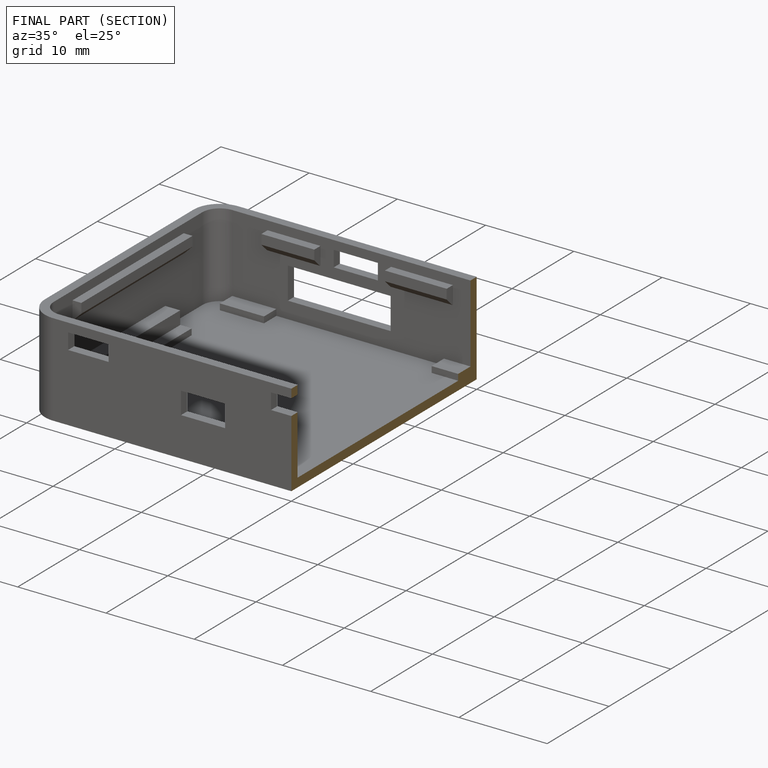
[diagram: finished part — half-section view (interior)]
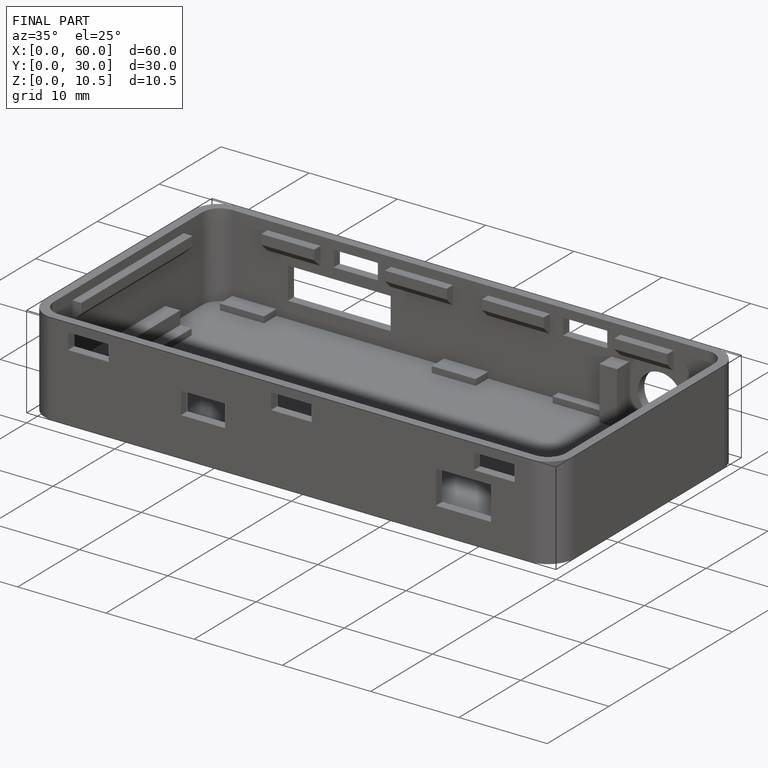
[diagram: finished part — iso view with bounding-box wireframe]
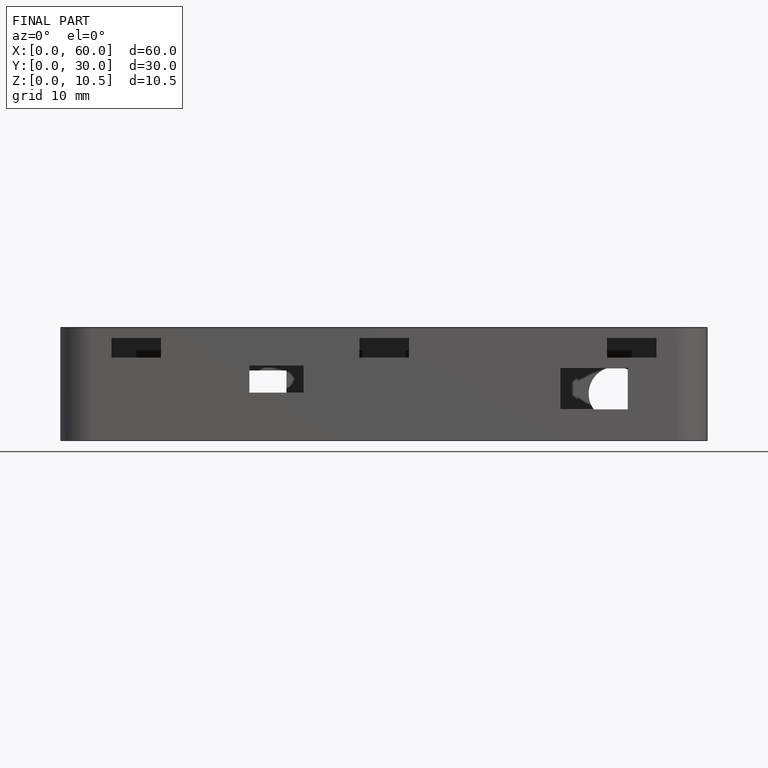
[diagram: finished part — front view with bounding-box wireframe]
